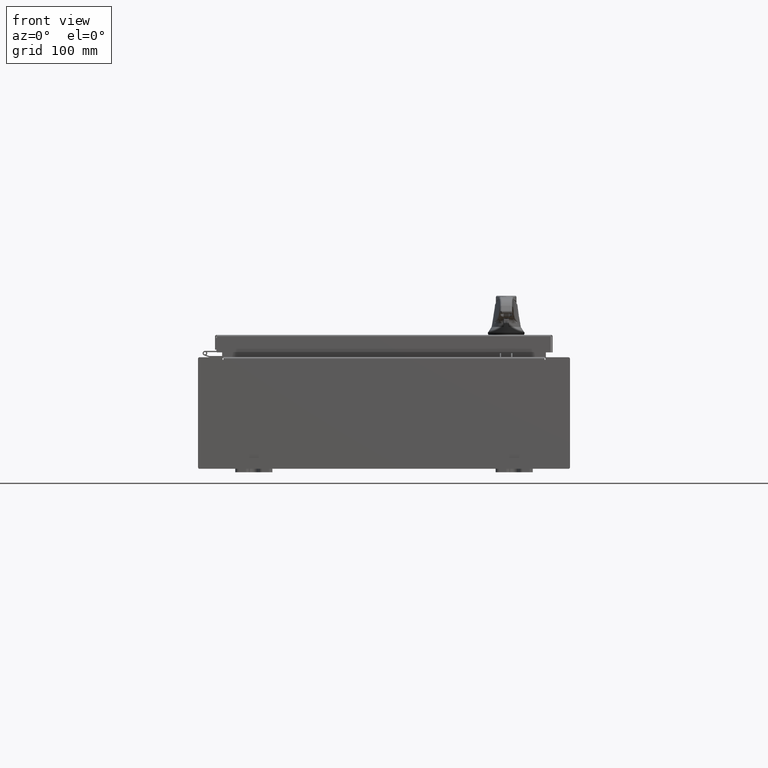
[diagram: clean part render]
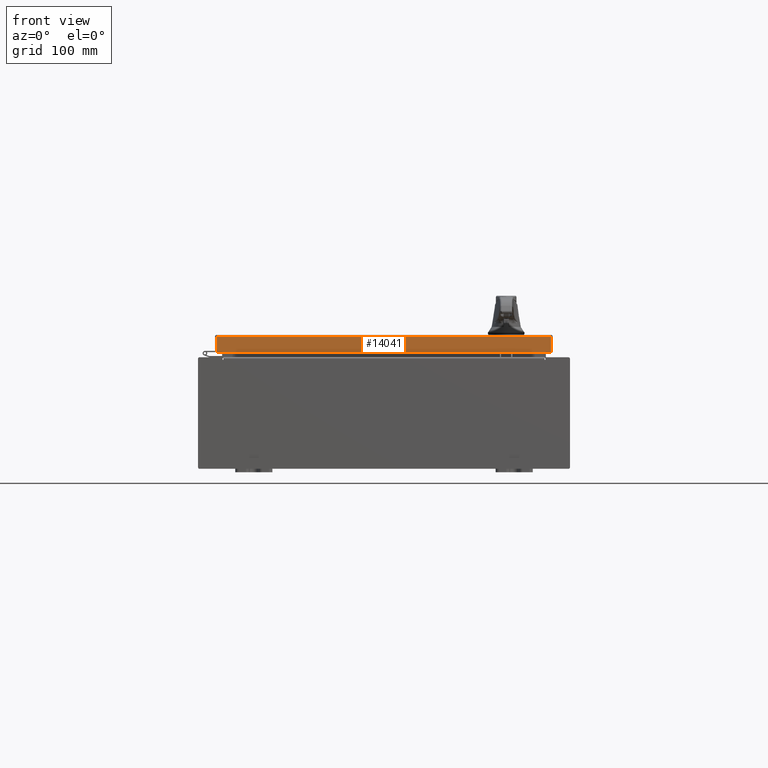
[diagram: same view with one face highlighted and labeled with its STEP entity id]
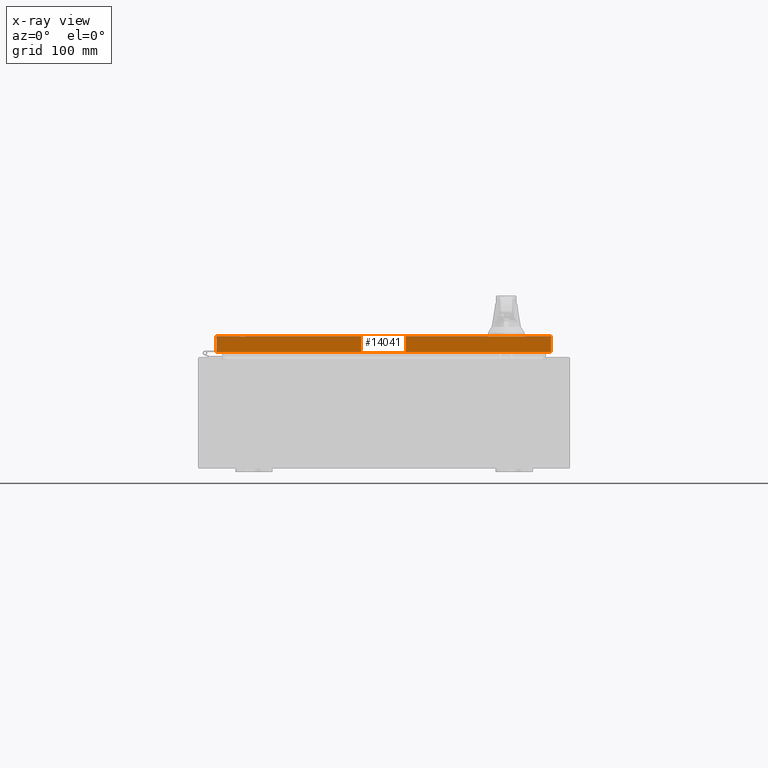
[diagram: x-ray of the same camera — body ghosted, the highlighted face saturated]
A machine part, front view. The second image highlights one B-rep face of the part: STEP entity #14041.
The next image is the same camera in x-ray: the body ghosted, the highlighted face saturated — about 0% of this face is hidden behind the body in this view.
In plain terms, the highlighted planar face has unit normal (0, 1, -0).
Its self-contained STEP definition (entity closure, byte-faithful):
#14041 = ADVANCED_FACE ( 'NONE', ( #29367 ), #61310, .F. ) ;
#14179 = VECTOR ( 'NONE', #44653, 39.37007874015748100 ) ;
#20191 = VECTOR ( 'NONE', #69198, 39.37007874015748100 ) ;
#27957 = ORIENTED_EDGE ( 'NONE', *, *, #95412, .F. ) ;
#28457 = CARTESIAN_POINT ( 'NONE',  ( -8.989157864376265300, -14.09400000000000100, -0.9376999999999976500 ) ) ;
#29048 = EDGE_LOOP ( 'NONE', ( #100065, #96060, #27957, #74020 ) ) ;
#29367 = FACE_OUTER_BOUND ( 'NONE', #29048, .T. ) ;
#33727 = VERTEX_POINT ( 'NONE', #28457 ) ;
#35519 = LINE ( 'NONE', #52250, #14179 ) ;
#44392 = DIRECTION ( 'NONE',  ( 0.0000000000000000000, 2.532419924601866100E-015, 1.000000000000000000 ) ) ;
#44653 = DIRECTION ( 'NONE',  ( 0.0000000000000000000, -2.532419924601866100E-015, -1.000000000000000000 ) ) ;
#46729 = CARTESIAN_POINT ( 'NONE',  ( -1.696526354822825600E-015, -14.09399999999999900, 3.595274007335028100E-014 ) ) ;
#47232 = LINE ( 'NONE', #113207, #93088 ) ;
#47473 = EDGE_CURVE ( 'NONE', #85886, #114485, #47232, .T. ) ;
#52250 = CARTESIAN_POINT ( 'NONE',  ( -8.989157864376265300, -14.09399999999999900, 3.595274007335028100E-014 ) ) ;
#55773 = CARTESIAN_POINT ( 'NONE',  ( 9.078000000000001200, -14.09400000000000300, -0.9376999999999997600 ) ) ;
#59532 = CARTESIAN_POINT ( 'NONE',  ( 9.078000000000001200, -14.09400000000000100, -0.08770000000000008300 ) ) ;
#61310 = PLANE ( 'NONE',  #65724 ) ;
#65393 = CARTESIAN_POINT ( 'NONE',  ( 8.989157864376270600, -14.09400000000000300, -0.9376999999999997600 ) ) ;
#65724 = AXIS2_PLACEMENT_3D ( 'NONE', #46729, #109646, #44392 ) ;
#65970 = CARTESIAN_POINT ( 'NONE',  ( 8.989157864376256400, -14.09400000000000100, -0.08770000000000008300 ) ) ;
#68861 = LINE ( 'NONE', #59532, #20191 ) ;
#69198 = DIRECTION ( 'NONE',  ( 1.000000000000000000, -1.203722403024567800E-016, -7.444398091725593800E-046 ) ) ;
#74020 = ORIENTED_EDGE ( 'NONE', *, *, #47473, .F. ) ;
#77015 = LINE ( 'NONE', #55773, #79883 ) ;
#79883 = VECTOR ( 'NONE', #91520, 39.37007874015748100 ) ;
#80519 = VERTEX_POINT ( 'NONE', #86566 ) ;
#85081 = EDGE_CURVE ( 'NONE', #80519, #33727, #35519, .T. ) ;
#85886 = VERTEX_POINT ( 'NONE', #65970 ) ;
#86566 = CARTESIAN_POINT ( 'NONE',  ( -8.989157864376265300, -14.09399999999999900, -0.08770000000000008300 ) ) ;
#91520 = DIRECTION ( 'NONE',  ( -1.000000000000000000, 1.203722403024570700E-016, 1.203722403024571000E-016 ) ) ;
#91997 = EDGE_CURVE ( 'NONE', #80519, #85886, #68861, .T. ) ;
#93088 = VECTOR ( 'NONE', #95114, 39.37007874015748100 ) ;
#95114 = DIRECTION ( 'NONE',  ( 0.0000000000000000000, -2.532419924601866100E-015, -1.000000000000000000 ) ) ;
#95412 = EDGE_CURVE ( 'NONE', #114485, #33727, #77015, .T. ) ;
#96060 = ORIENTED_EDGE ( 'NONE', *, *, #85081, .T. ) ;
#100065 = ORIENTED_EDGE ( 'NONE', *, *, #91997, .F. ) ;
#109646 = DIRECTION ( 'NONE',  ( 1.203722403024567800E-016, 1.000000000000000000, -2.532419924601866100E-015 ) ) ;
#113207 = CARTESIAN_POINT ( 'NONE',  ( 8.989157864376270600, -14.09400000000000100, -0.07469999999999980800 ) ) ;
#114485 = VERTEX_POINT ( 'NONE', #65393 ) ;